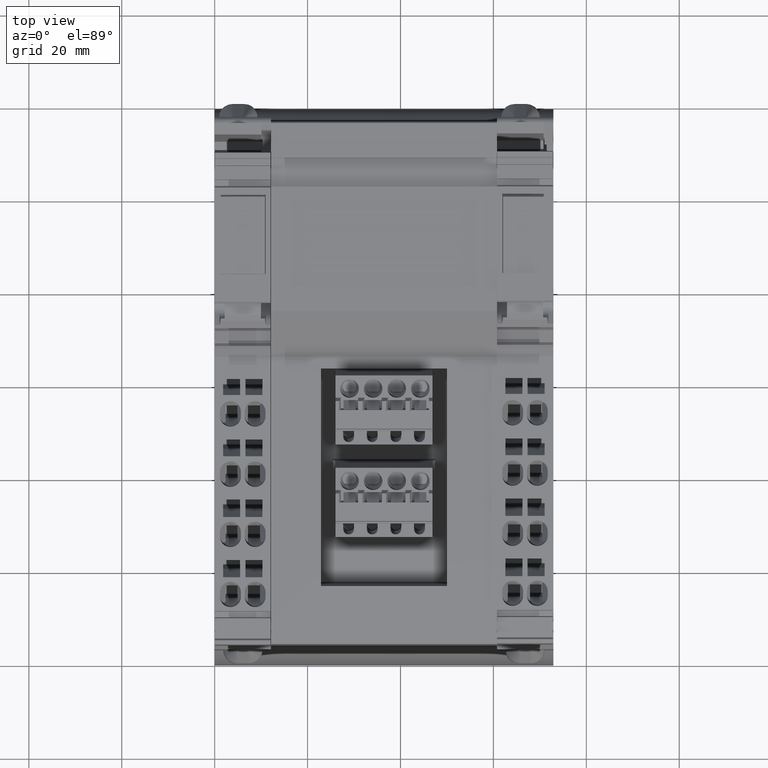
[diagram: clean part render]
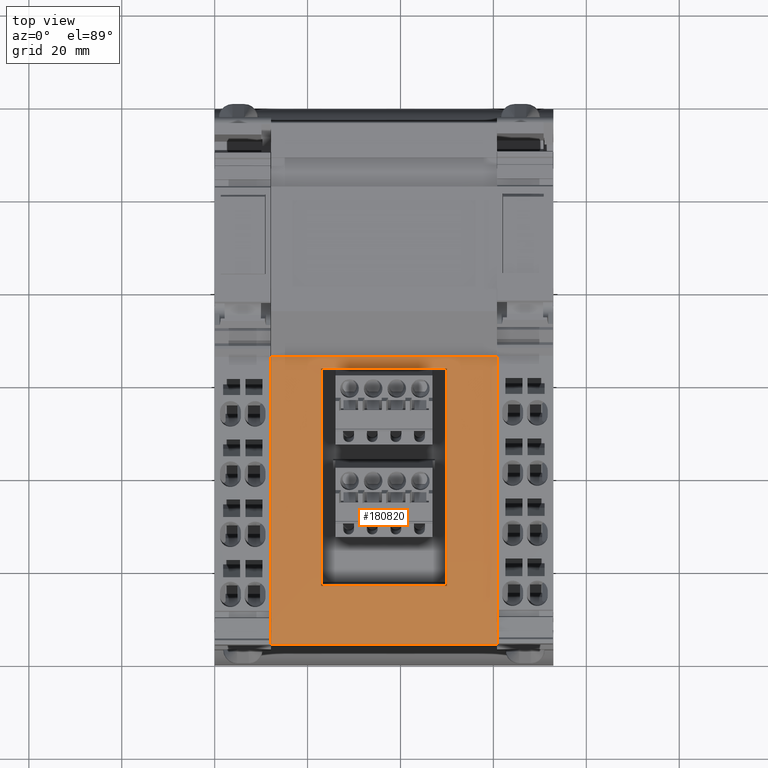
[diagram: same view with one face highlighted and labeled with its STEP entity id]
A machine part, top view. The second image highlights one B-rep face of the part: STEP entity #180820.
In plain terms, the highlighted cylindrical surface (partial cylindrical patch) has radius 575 mm, axis along (1, 0, 0).
Its self-contained STEP definition (entity closure, byte-faithful):
#2850=CARTESIAN_POINT('',(-13.1829347668366,-67.6708987577255,
46.7999999999999));
#2860=VERTEX_POINT('',#2850);
#2910=CARTESIAN_POINT('',(-104.084452057091,500.098344997297,
46.7999999999886));
#2920=DIRECTION('',(0.,0.,1.));
#2930=DIRECTION('',(-1.,0.,0.));
#2940=AXIS2_PLACEMENT_3D('',#2910,#2920,#2930);
#2950=CIRCLE('',#2940,574.999999999844);
#2960=CARTESIAN_POINT('',(-74.9791020504716,-74.1645552503273,
46.7999999999999));
#2970=VERTEX_POINT('',#2960);
#2980=EDGE_CURVE('',#2970,#2860,#2950,.T.);
#88950=CARTESIAN_POINT('',(-74.9791020504716,-74.1645552503273,
46.7999999999886));
#88960=DIRECTION('',(0.,0.,-1.));
#88970=VECTOR('',#88960,1.);
#88980=LINE('',#88950,#88970);
#88990=CARTESIAN_POINT('',(-74.9791020504716,-74.1645552503273,
-1.79999999999991));
#89000=VERTEX_POINT('',#88990);
#89010=EDGE_CURVE('',#2970,#89000,#88980,.T.);
#107950=CARTESIAN_POINT('',(-104.084452057091,500.098344997297,
-1.79999999998863));
#107960=DIRECTION('',(-1.04009420822853E-45,3.88938454866321E-62,1.));
#107970=DIRECTION('',(-1.,0.,-1.04009420822853E-45));
#107980=AXIS2_PLACEMENT_3D('',#107950,#107960,#107970);
#107990=CIRCLE('',#107980,574.999999999844);
#108000=CARTESIAN_POINT('',(-13.1829347668366,-67.6708987577255,
-1.79999999999991));
#108010=VERTEX_POINT('',#108000);
#108020=EDGE_CURVE('',#89000,#108010,#107990,.T.);
#177350=CARTESIAN_POINT('',(-13.1829347668366,-67.6708987577255,
46.7999999999886));
#177360=DIRECTION('',(0.,0.,-1.));
#177370=VECTOR('',#177360,1.);
#177380=LINE('',#177350,#177370);
#177390=EDGE_CURVE('',#2860,#108010,#177380,.T.);
#178080=CARTESIAN_POINT('',(-104.084452057091,500.098344997297,
8.94601255730046));
#178090=DIRECTION('',(-1.04009420822853E-45,3.88938454866321E-62,1.));
#178100=DIRECTION('',(-1.,0.,-1.04009420822853E-45));
#178110=AXIS2_PLACEMENT_3D('',#178080,#178090,#178100);
#178120=CIRCLE('',#178110,574.999999999844);
#178130=CARTESIAN_POINT('',(-72.3503997975788,-74.0252914496022,
8.94601255730046));
#178140=VERTEX_POINT('',#178130);
#178150=CARTESIAN_POINT('',(-25.6440588869293,-69.5261846001661,
8.94601255730046));
#178160=VERTEX_POINT('',#178150);
#178170=EDGE_CURVE('',#178140,#178160,#178120,.T.);
#179070=CARTESIAN_POINT('',(-25.6440588372004,-69.5261845933182,
36.0539874997528));
#179080=VERTEX_POINT('',#179070);
#179110=CARTESIAN_POINT('',(-25.6440588372004,-69.5261845933182,
-1.79999999998863));
#179120=DIRECTION('',(-1.04009420822853E-45,3.88938454866321E-62,1.));
#179130=VECTOR('',#179120,1.);
#179140=LINE('',#179110,#179130);
#179150=EDGE_CURVE('',#178160,#179080,#179140,.T.);
#179690=CARTESIAN_POINT('',(-72.3503997975788,-74.0252914496022,
36.0539874997528));
#179700=VERTEX_POINT('',#179690);
#179730=CARTESIAN_POINT('',(-104.084452057091,500.098344997297,
36.0539874997528));
#179740=DIRECTION('',(-1.04009420822853E-45,3.88938454866321E-62,1.));
#179750=DIRECTION('',(-1.,0.,-1.04009420822853E-45));
#179760=AXIS2_PLACEMENT_3D('',#179730,#179740,#179750);
#179770=CIRCLE('',#179760,574.999999999844);
#179780=EDGE_CURVE('',#179700,#179080,#179770,.T.);
#180600=CARTESIAN_POINT('',(-104.084452057091,500.098344997297,
-1.79999999998863));
#180610=DIRECTION('',(-1.04009420822853E-45,3.88938454866321E-62,1.));
#180620=DIRECTION('',(-1.,0.,-1.04009420822853E-45));
#180630=AXIS2_PLACEMENT_3D('',#180600,#180610,#180620);
#180640=CYLINDRICAL_SURFACE('',#180630,574.999999999844);
#180650=ORIENTED_EDGE('',*,*,#179780,.T.);
#180660=CARTESIAN_POINT('',(-72.3503997975788,-74.0252914496022,
-1.79999999998863));
#180670=DIRECTION('',(-1.04009420822853E-45,3.88938454866321E-62,1.));
#180680=VECTOR('',#180670,1.);
#180690=LINE('',#180660,#180680);
#180700=EDGE_CURVE('',#178140,#179700,#180690,.T.);
#180710=ORIENTED_EDGE('',*,*,#180700,.T.);
#180720=ORIENTED_EDGE('',*,*,#178170,.F.);
#180730=ORIENTED_EDGE('',*,*,#179150,.F.);
#180740=EDGE_LOOP('',(#180730,#180720,#180710,#180650));
#180750=FACE_BOUND('',#180740,.T.);
#180760=ORIENTED_EDGE('',*,*,#2980,.F.);
#180770=ORIENTED_EDGE('',*,*,#177390,.F.);
#180780=ORIENTED_EDGE('',*,*,#108020,.T.);
#180790=ORIENTED_EDGE('',*,*,#89010,.T.);
#180800=EDGE_LOOP('',(#180790,#180780,#180770,#180760));
#180810=FACE_OUTER_BOUND('',#180800,.T.);
#180820=ADVANCED_FACE('',(#180750,#180810),#180640,.T.);